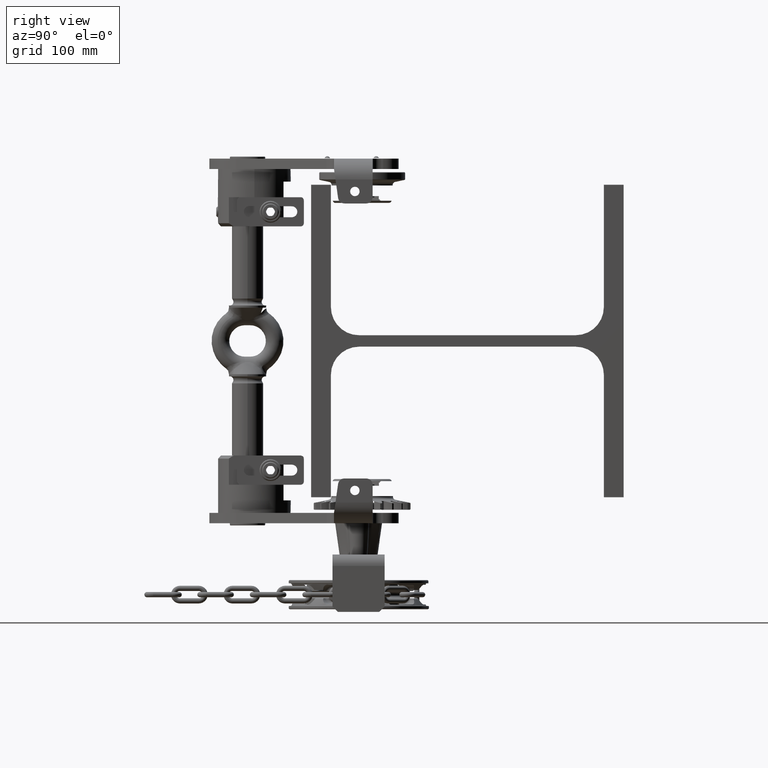
[diagram: clean part render]
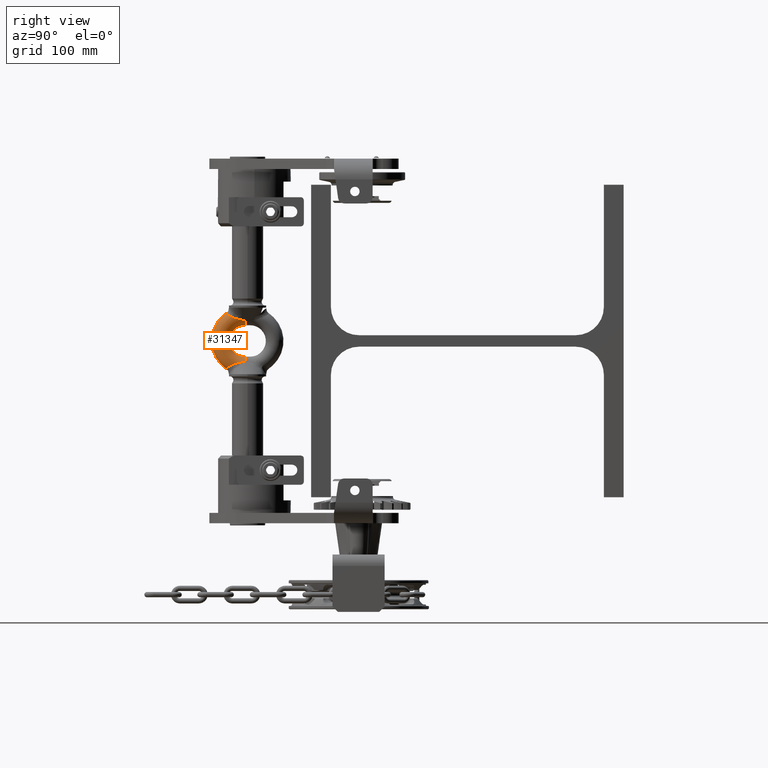
[diagram: same view with one face highlighted and labeled with its STEP entity id]
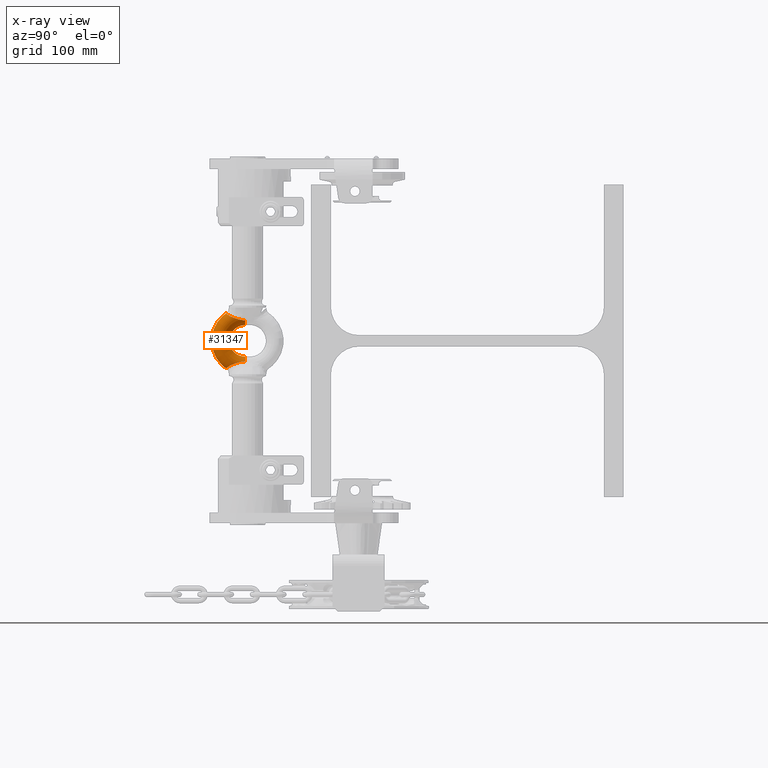
[diagram: x-ray of the same camera — body ghosted, the highlighted face saturated]
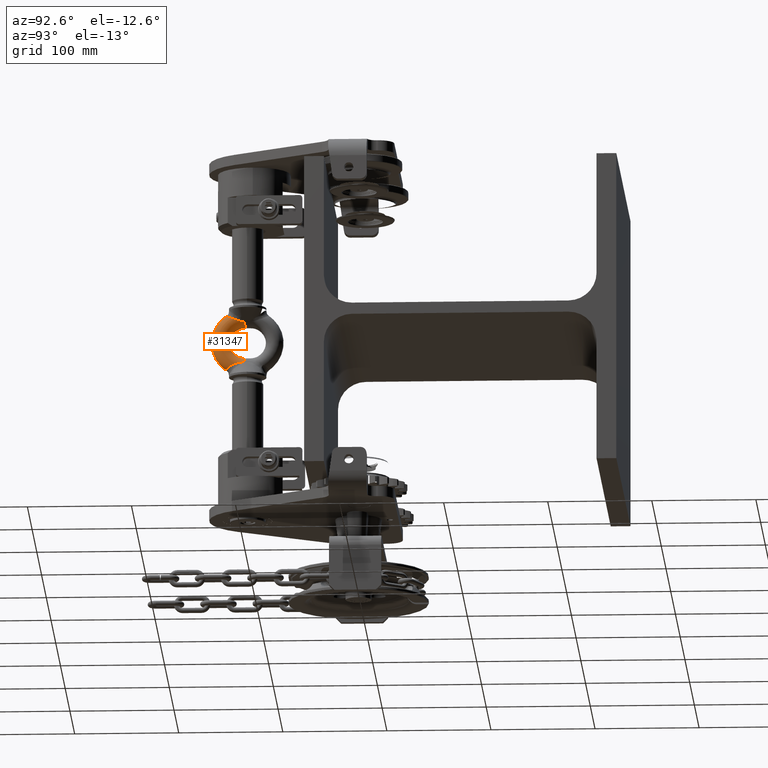
[diagram: same view with one face highlighted and labeled with its STEP entity id]
A machine part, right view. The second image highlights one B-rep face of the part: STEP entity #31347.
The next image is the same camera in x-ray: the body ghosted, the highlighted face saturated — about 0% of this face is hidden behind the body in this view.
A second angle (auxiliary view) of the same face is appended — the face is thin or edge-on in the first view.
In plain terms, the highlighted toroidal blend (fillet) surface has major radius 23.5 mm and minor (blend) radius 8.5 mm.
Its self-contained STEP definition (entity closure, byte-faithful):
#277 = EDGE_CURVE ( 'NONE', #48843, #9259, #40913, .T. ) ;
#392 = CARTESIAN_POINT ( 'NONE',  ( -8.012117313590044500, -217.8926884514708600, 20.18206153499020400 ) ) ;
#607 = CARTESIAN_POINT ( 'NONE',  ( -3.593475862119110100, -231.0586143345926500, -25.86095324539558100 ) ) ;
#688 = ORIENTED_EDGE ( 'NONE', *, *, #3770, .T. ) ;
#792 = CARTESIAN_POINT ( 'NONE',  ( -1.829604765780566300, -231.4785545748710500, -26.24635493749952900 ) ) ;
#902 = CARTESIAN_POINT ( 'NONE',  ( 7.183376436351991000, -228.1645947484738900, 23.92812268775933000 ) ) ;
#1229 = TOROIDAL_SURFACE ( 'NONE', #37396, 23.50000000000000000, 8.500000000000000000 ) ;
#1336 = CARTESIAN_POINT ( 'NONE',  ( 8.498110677027398200, -222.1291866266562400, -21.43922223185180100 ) ) ;
#1525 = CARTESIAN_POINT ( 'NONE',  ( 8.330479298748246100, -225.2414437945095400, -22.55338694072743200 ) ) ;
#2070 = EDGE_CURVE ( 'NONE', #53631, #4346, #40213, .T. ) ;
#2414 = CARTESIAN_POINT ( 'NONE',  ( -7.707665712135336900, -215.7187106817510800, -19.79814650362222400 ) ) ;
#3323 = CARTESIAN_POINT ( 'NONE',  ( -8.177037225213736000, -218.9575038254568300, -20.45351637153345000 ) ) ;
#3770 = EDGE_CURVE ( 'NONE', #34918, #30333, #41793, .T. ) ;
#4341 = EDGE_CURVE ( 'NONE', #4346, #15022, #14826, .T. ) ;
#4346 = VERTEX_POINT ( 'NONE', #23506 ) ;
#4607 = CARTESIAN_POINT ( 'NONE',  ( -8.176983259097278600, -218.9571527733319600, 20.45342395409418000 ) ) ;
#4747 = CARTESIAN_POINT ( 'NONE',  ( 7.398102048708245200, -227.7998351219848400, 23.72997517694874500 ) ) ;
#4819 = CARTESIAN_POINT ( 'NONE',  ( -2.278363378916902900, -231.3969771073864500, -26.16710540338973700 ) ) ;
#4918 = CARTESIAN_POINT ( 'NONE',  ( -7.760471377960655600, -227.0435407587240800, 23.34831969248508100 ) ) ;
#4984 = CARTESIAN_POINT ( 'NONE',  ( 0.4699801663488970000, -231.6124522104546500, -26.38022830499559000 ) ) ;
#5083 = FACE_OUTER_BOUND ( 'NONE', #51565, .T. ) ;
#5329 = CARTESIAN_POINT ( 'NONE',  ( -8.436953892678269900, -221.0724974940012000, 21.09512670447970700 ) ) ;
#5534 = CARTESIAN_POINT ( 'NONE',  ( 3.152771738823623200, -231.1634170928548400, -25.95720264742214300 ) ) ;
#5538 = CARTESIAN_POINT ( 'NONE',  ( 7.607898068798538000, -214.6138675099476000, -19.68357328288470900 ) ) ;
#5701 = CARTESIAN_POINT ( 'NONE',  ( 2.939087935029935900, -231.2268283909203900, -26.01317924822786400 ) ) ;
#5704 = CARTESIAN_POINT ( 'NONE',  ( 7.707850285551109500, -215.7204890694204700, -19.79835566781951100 ) ) ;
#8385 = CARTESIAN_POINT ( 'NONE',  ( -6.425923303009506400, -229.1537454965351800, 24.50925974817403100 ) ) ;
#8567 = CARTESIAN_POINT ( 'NONE',  ( 0.4571020592432961100, -231.6129502900379000, 26.38073822630805100 ) ) ;
#8743 = CARTESIAN_POINT ( 'NONE',  ( -1.845602125595855700, -231.4760137976381900, 26.24387967235901400 ) ) ;
#8912 = CARTESIAN_POINT ( 'NONE',  ( -7.395150458443200000, -227.8054969754486800, 23.73291602195433100 ) ) ;
#9001 = FACE_OUTER_BOUND ( 'NONE', #52318, .T. ) ;
#9176 = CARTESIAN_POINT ( 'NONE',  ( 1.845602125594609300, -231.4760137976383300, -26.24387967235919200 ) ) ;
#9259 = VERTEX_POINT ( 'NONE', #9573 ) ;
#9573 = CARTESIAN_POINT ( 'NONE',  ( 8.033546829605322500, -226.2359166279127600, 22.98436222492477700 ) ) ;
#9661 = CARTESIAN_POINT ( 'NONE',  ( 8.012103469725325100, -217.8925964510991100, 20.18203515796556100 ) ) ;
#9900 = CARTESIAN_POINT ( 'NONE',  ( 5.474604102800814300, -229.9976184564135900, -25.06376838451633300 ) ) ;
#9903 = CARTESIAN_POINT ( 'NONE',  ( 8.012117313590431800, -217.8926884514733300, -20.18206153499076900 ) ) ;
#10036 = CARTESIAN_POINT ( 'NONE',  ( 7.559127262799712800, -213.5000000000011400, 19.61289374665443900 ) ) ;
#10072 = CARTESIAN_POINT ( 'NONE',  ( 6.425923303006026500, -229.1537454965388500, -24.50925974817642200 ) ) ;
#10428 = CARTESIAN_POINT ( 'NONE',  ( 7.910892914977518200, -226.6471068375319900, -23.16216176787063600 ) ) ;
#10912 = DIRECTION ( 'NONE',  ( 9.340314967697839100E-018, -1.000000000000000000, -1.409773439478746500E-014 ) ) ;
#11284 = CARTESIAN_POINT ( 'NONE',  ( -8.033546829603018600, -226.2359166279204900, -22.98436222492813400 ) ) ;
#11325 = CARTESIAN_POINT ( 'NONE',  ( 8.437016275275981400, -221.0732321825282400, 21.09536054762053000 ) ) ;
#11498 = CARTESIAN_POINT ( 'NONE',  ( -7.926675991449930500, -217.3560716809734300, -20.06417413808372500 ) ) ;
#11863 = CARTESIAN_POINT ( 'NONE',  ( -8.461707026444779300, -224.2171476931511900, -22.16352645544191800 ) ) ;
#12026 = CARTESIAN_POINT ( 'NONE',  ( -8.508370039768658800, -222.6550911638806800, -21.61594198959735600 ) ) ;
#12091 = CARTESIAN_POINT ( 'NONE',  ( 2.335078742462192400E-017, -213.5000000000011400, -3.430864362104419700E-015 ) ) ;
#12206 = CARTESIAN_POINT ( 'NONE',  ( -8.498138546864998600, -222.1300118594207900, -21.43949636248295600 ) ) ;
#12801 = CARTESIAN_POINT ( 'NONE',  ( 7.774365471924894200, -216.2695698684131000, 19.87248625893916200 ) ) ;
#12945 = CARTESIAN_POINT ( 'NONE',  ( 6.695757780853430300, -228.8422757546069300, 24.31850306569397800 ) ) ;
#13062 = CARTESIAN_POINT ( 'NONE',  ( 1.123973169648826800E-015, -213.5000000000011400, 23.49999999999999600 ) ) ;
#13197 = CARTESIAN_POINT ( 'NONE',  ( -7.183376436348591900, -228.1645947484791500, -23.92812268776232900 ) ) ;
#13270 = EDGE_CURVE ( 'NONE', #48082, #53631, #36133, .T. ) ;
#13368 = CARTESIAN_POINT ( 'NONE',  ( -0.9211083937004489500, -231.5863482906602300, -26.35306217488143000 ) ) ;
#13700 = CARTESIAN_POINT ( 'NONE',  ( 7.926675991449559300, -217.3560716809711300, 20.06417413808319900 ) ) ;
#13731 = AXIS2_PLACEMENT_3D ( 'NONE', #13062, #37584, #45978 ) ;
#14104 = CARTESIAN_POINT ( 'NONE',  ( 7.926745514533425100, -217.3564898702217400, -20.06427242854239900 ) ) ;
#14295 = CARTESIAN_POINT ( 'NONE',  ( 7.760471377957923500, -227.0435407587307000, -23.34831969248830300 ) ) ;
#14826 = B_SPLINE_CURVE_WITH_KNOTS ( 'NONE', 3,
 ( #53365, #19089, #27553, #2414, #31786, #11498, #53918, #3323, #33197, #53537, #15736, #12206, #12026, #11863, #53731, #49363 ),
 .UNSPECIFIED., .F., .F.,
 ( 4, 2, 2, 2, 2, 2, 2, 4 ),
 ( 0.0000000000000000000, 0.001673460226891922200, 0.003346920453783844500, 0.005020380680675766300, 0.006693840907567688900, 0.008367301134459612400, 0.01004076136135153300, 0.01338768181513538100 ),
 .UNSPECIFIED. ) ;
#15022 = VERTEX_POINT ( 'NONE', #11284 ) ;
#15736 = CARTESIAN_POINT ( 'NONE',  ( -8.437016275276397100, -221.0732321825330500, -21.09536054762211400 ) ) ;
#15785 = ORIENTED_EDGE ( 'NONE', *, *, #42144, .T. ) ;
#16752 = B_SPLINE_CURVE_WITH_KNOTS ( 'NONE', 3,
 ( #17787, #29786, #17418, #46984, #13197, #21684, #38245, #42420, #17255, #25920, #607, #4819, #792, #13368, #29947, #4984, #34370, #9176, #52298, #5701, #5534, #18918, #34917, #18731, #39715, #48281, #9900, #23171, #43330, #10072, #22414, #51734, #39340, #14295, #10428, #52102 ),
 .UNSPECIFIED., .F., .F.,
 ( 4, 2, 2, 2, 2, 2, 2, 2, 2, 2, 2, 2, 2, 2, 2, 2, 2, 4 ),
 ( 0.0000000000000000000, 0.001383546643986812700, 0.002767093287973625400, 0.004150639931960438700, 0.005534186575947250800, 0.008301279863920837600, 0.009684826507907621000, 0.01106837315189440300, 0.01245191979588118800, 0.01383546643986797000, 0.01452723976186137200, 0.01521901308385477400, 0.01660255972784161300, 0.01729433304983502700, 0.01798610637182844500, 0.01936965301581532900, 0.02075319965980221300, 0.02213674630378909700 ),
 .UNSPECIFIED. ) ;
#16811 = CARTESIAN_POINT ( 'NONE',  ( 8.461707026445401100, -224.2171476931444000, 22.16352645543940600 ) ) ;
#17003 = CARTESIAN_POINT ( 'NONE',  ( -0.9352857994376837500, -231.5852878624832300, 26.35197382623404400 ) ) ;
#17188 = CARTESIAN_POINT ( 'NONE',  ( 7.760821422453897600, -227.0423118168864100, 23.34778317703644400 ) ) ;
#17231 = CARTESIAN_POINT ( 'NONE',  ( -7.707850285550978100, -215.7204890694193000, 19.79835566781935400 ) ) ;
#17255 = CARTESIAN_POINT ( 'NONE',  ( -5.480409519094659600, -230.0056671382585600, -25.06712180852130000 ) ) ;
#17418 = CARTESIAN_POINT ( 'NONE',  ( -7.760821422451083900, -227.0423118168931800, -23.34778317703975900 ) ) ;
#17536 = CARTESIAN_POINT ( 'NONE',  ( -3.152771738825795600, -231.1634170928540800, 25.95720264742156400 ) ) ;
#17787 = CARTESIAN_POINT ( 'NONE',  ( -8.033546829603018600, -226.2359166279204900, -22.98436222492813400 ) ) ;
#17945 = CARTESIAN_POINT ( 'NONE',  ( -8.461781882911847000, -224.2164204265933700, 22.16325586094181000 ) ) ;
#18169 = CARTESIAN_POINT ( 'NONE',  ( 8.033546829601752000, -226.2359166279247200, -22.98436222492995300 ) ) ;
#18731 = CARTESIAN_POINT ( 'NONE',  ( 4.389082001979673500, -230.6775301970003200, -25.55731191684988000 ) ) ;
#18918 = CARTESIAN_POINT ( 'NONE',  ( 3.574386387254490300, -231.0201841004270000, -25.83488229174130200 ) ) ;
#19089 = CARTESIAN_POINT ( 'NONE',  ( -7.574453641674507400, -214.0577752714033900, -19.64269844990710800 ) ) ;
#20118 = ORIENTED_EDGE ( 'NONE', *, *, #20265, .F. ) ;
#20212 = CARTESIAN_POINT ( 'NONE',  ( 7.559127262799712800, -213.5000000000011400, 19.61289374665443900 ) ) ;
#20265 = EDGE_CURVE ( 'NONE', #48843, #30333, #50906, .T. ) ;
#21135 = CARTESIAN_POINT ( 'NONE',  ( 7.607863819434955500, -214.6132226181503900, 19.68353115087416700 ) ) ;
#21437 = CARTESIAN_POINT ( 'NONE',  ( 0.9211083937013219100, -231.5863482906602300, 26.35306217488135200 ) ) ;
#21470 = CARTESIAN_POINT ( 'NONE',  ( -8.498110677027218800, -222.1291866266509200, 21.43922223185004600 ) ) ;
#21617 = CARTESIAN_POINT ( 'NONE',  ( -3.783211691023427000, -230.9399060595463900, 25.76818904130486500 ) ) ;
#21684 = CARTESIAN_POINT ( 'NONE',  ( -6.695757780849822500, -228.8422757546112800, -24.31850306569667100 ) ) ;
#22199 = CARTESIAN_POINT ( 'NONE',  ( -8.385842717910357200, -220.5426974395362000, 20.92708601020787600 ) ) ;
#22231 = CARTESIAN_POINT ( 'NONE',  ( 8.176983259097761800, -218.9571527733351700, -20.45342395409505400 ) ) ;
#22414 = CARTESIAN_POINT ( 'NONE',  ( 6.698279655723747600, -228.8389357884966800, -24.31654947768435100 ) ) ;
#22563 = CARTESIAN_POINT ( 'NONE',  ( -7.559127262799717300, -213.5000000000011400, 19.61289374665443600 ) ) ;
#23171 = CARTESIAN_POINT ( 'NONE',  ( 5.806954384463249000, -229.7332536987617000, -24.88451005954024000 ) ) ;
#23506 = CARTESIAN_POINT ( 'NONE',  ( -7.559127262799711000, -213.5000000000008500, -19.61289374665445700 ) ) ;
#24603 = CARTESIAN_POINT ( 'NONE',  ( 7.559127262799706600, -213.5000000000008500, -19.61289374665443600 ) ) ;
#24666 = DIRECTION ( 'NONE',  ( 1.000000000000000000, 9.340314967698506300E-018, -4.683499498826397000E-017 ) ) ;
#24785 = CARTESIAN_POINT ( 'NONE',  ( 8.498138546864808500, -222.1300118594153300, 21.43949636248108700 ) ) ;
#25353 = CARTESIAN_POINT ( 'NONE',  ( 7.707665712135187700, -215.7187106817497700, 19.79814650362203200 ) ) ;
#25496 = CARTESIAN_POINT ( 'NONE',  ( -6.698279655727170700, -228.8389357884924800, 24.31654947768182100 ) ) ;
#25540 = CARTESIAN_POINT ( 'NONE',  ( -8.255971919958394500, -219.4856971680085300, 20.60612517120819800 ) ) ;
#25680 = CARTESIAN_POINT ( 'NONE',  ( -5.967984477963142400, -229.5926266201328800, 24.79155080476233400 ) ) ;
#25722 = CARTESIAN_POINT ( 'NONE',  ( -7.574460406512468300, -214.0580214651949400, 19.64271160526422800 ) ) ;
#25858 = CARTESIAN_POINT ( 'NONE',  ( 6.422970416383629200, -229.1566862657668100, 24.51113094386779400 ) ) ;
#25898 = CARTESIAN_POINT ( 'NONE',  ( -8.330479298749489600, -225.2414437945022300, 22.55338694072455400 ) ) ;
#25920 = CARTESIAN_POINT ( 'NONE',  ( -4.394644268800856700, -230.7181241440165400, -25.57724404439000300 ) ) ;
#26036 = CARTESIAN_POINT ( 'NONE',  ( 1.829604765782102800, -231.4785545748708300, 26.24635493749927300 ) ) ;
#26076 = CARTESIAN_POINT ( 'NONE',  ( -8.508368360528306700, -222.6542570671407200, 21.61565742733627700 ) ) ;
#27553 = CARTESIAN_POINT ( 'NONE',  ( -7.607863819435000800, -214.6132226181508700, -19.68353115087424100 ) ) ;
#27925 = CARTESIAN_POINT ( 'NONE',  ( 8.256039911982378900, -219.4861712147273400, 20.60626332106449300 ) ) ;
#29545 = CARTESIAN_POINT ( 'NONE',  ( 5.816401600259342600, -229.7377900689749600, 24.88494122273117200 ) ) ;
#29726 = CARTESIAN_POINT ( 'NONE',  ( -4.389082001982564500, -230.6775301969989300, 25.55731191684878900 ) ) ;
#29762 = CARTESIAN_POINT ( 'NONE',  ( -7.926745514533092100, -217.3564898702195800, 20.06427242854194000 ) ) ;
#29786 = CARTESIAN_POINT ( 'NONE',  ( -7.910900452840527600, -226.6470815672796000, -23.16215084095834300 ) ) ;
#29947 = CARTESIAN_POINT ( 'NONE',  ( -0.4571020592427776400, -231.6129502900378700, -26.38073822630807200 ) ) ;
#30066 = CARTESIAN_POINT ( 'NONE',  ( -4.768551036335461300, -230.4732831993357500, 25.40183353058509000 ) ) ;
#30252 = CARTESIAN_POINT ( 'NONE',  ( -2.289661432178440300, -231.3943684605416100, 26.16469576149837200 ) ) ;
#30333 = VERTEX_POINT ( 'NONE', #33542 ) ;
#30684 = CARTESIAN_POINT ( 'NONE',  ( 7.774547543605799600, -216.2709462932545500, -19.87270462672620800 ) ) ;
#30870 = CARTESIAN_POINT ( 'NONE',  ( 8.461781882911264300, -224.2164204265998800, -22.16325586094416200 ) ) ;
#31024 = EDGE_CURVE ( 'NONE', #9259, #34918, #32726, .T. ) ;
#31347 = ADVANCED_FACE ( 'NONE', ( #9001, #5083 ), #1229, .T. ) ;
#31786 = CARTESIAN_POINT ( 'NONE',  ( -7.774365471925120700, -216.2695698684147800, -19.87248625893945000 ) ) ;
#32143 = CARTESIAN_POINT ( 'NONE',  ( 8.385914111974976500, -220.5433579218877800, 20.92729236923187500 ) ) ;
#32271 = CARTESIAN_POINT ( 'NONE',  ( -1.077271594799582900E-015, -213.5000000000008000, -23.50000000000000400 ) ) ;
#32448 = DIRECTION ( 'NONE',  ( 1.000000000000000000, 0.0000000000000000000, 0.0000000000000000000 ) ) ;
#32726 = B_SPLINE_CURVE_WITH_KNOTS ( 'NONE', 3,
 ( #42360, #46575, #17188, #4747, #902, #12945, #25858, #29545, #50941, #37814, #46753, #42198, #26036, #21437, #8567, #33932, #17003, #8743, #30252, #50424, #17536, #33575, #21617, #29726, #30066, #51119, #50772, #50613, #25680, #8385, #25496, #34122, #8912, #4918, #42728, #38177 ),
 .UNSPECIFIED., .F., .F.,
 ( 4, 2, 2, 2, 2, 2, 2, 2, 2, 2, 2, 2, 2, 2, 2, 2, 2, 4 ),
 ( 0.0000000000000000000, 0.001383546643987845100, 0.002767093287975690200, 0.004150639931963535200, 0.005534186575951380300, 0.008301279863927073900, 0.009684826507914910300, 0.01106837315190274700, 0.01245191979589058100, 0.01383546643987841800, 0.01452723976187233500, 0.01521901308386625200, 0.01660255972785411700, 0.01729433304984805100, 0.01798610637184198300, 0.01936965301582989400, 0.02075319965981780500, 0.02213674630380571900 ),
 .UNSPECIFIED. ) ;
#33197 = CARTESIAN_POINT ( 'NONE',  ( -8.256039911982922400, -219.4861712147311400, -20.60626332106566100 ) ) ;
#33542 = CARTESIAN_POINT ( 'NONE',  ( -7.559127262799717300, -213.5000000000011400, 19.61289374665443600 ) ) ;
#33575 = CARTESIAN_POINT ( 'NONE',  ( -3.574386387256947000, -231.0201841004260600, 25.83488229174054100 ) ) ;
#33932 = CARTESIAN_POINT ( 'NONE',  ( -0.4699801663491024500, -231.6124522104545600, 26.38022830499560800 ) ) ;
#33978 = CARTESIAN_POINT ( 'NONE',  ( -7.774547543605613100, -216.2709462932530800, 19.87270462672598400 ) ) ;
#34122 = CARTESIAN_POINT ( 'NONE',  ( -7.182722925595189900, -228.1653374688099500, 23.92858023809002800 ) ) ;
#34370 = CARTESIAN_POINT ( 'NONE',  ( 0.9352857994371165400, -231.5852878624834000, -26.35197382623407600 ) ) ;
#34552 = CARTESIAN_POINT ( 'NONE',  ( 8.508368360528338700, -222.6542570671464000, -21.61565742733819600 ) ) ;
#34917 = CARTESIAN_POINT ( 'NONE',  ( 3.783211691020842000, -230.9399060595474700, -25.76818904130570300 ) ) ;
#34918 = VERTEX_POINT ( 'NONE', #53761 ) ;
#35018 = CARTESIAN_POINT ( 'NONE',  ( 8.033546829605322500, -226.2359166279127600, 22.98436222492477700 ) ) ;
#36133 = B_SPLINE_CURVE_WITH_KNOTS ( 'NONE', 3,
 ( #18169, #1525, #30870, #34552, #1336, #38611, #47359, #46988, #22231, #9903, #14104, #30684, #5704, #5538, #51924, #43157 ),
 .UNSPECIFIED., .F., .F.,
 ( 4, 2, 2, 2, 2, 2, 2, 4 ),
 ( 0.0000000000000000000, 0.003371336602415204000, 0.005057004903622807100, 0.006742673204830410700, 0.008428341506038014200, 0.01011400980724561800, 0.01179967810845322100, 0.01348534640966082500 ),
 .UNSPECIFIED. ) ;
#37311 = CARTESIAN_POINT ( 'NONE',  ( 7.574453641674504700, -214.0577752714033000, 19.64269844990707600 ) ) ;
#37396 = AXIS2_PLACEMENT_3D ( 'NONE', #12091, #24666, #54150 ) ;
#37575 = ORIENTED_EDGE ( 'NONE', *, *, #277, .T. ) ;
#37584 = DIRECTION ( 'NONE',  ( -9.340314967698492400E-018, 1.000000000000000000, 9.340314967698498500E-018 ) ) ;
#37814 = CARTESIAN_POINT ( 'NONE',  ( 4.394644268804078100, -230.7181241440150900, 25.57724404438880200 ) ) ;
#38026 = ORIENTED_EDGE ( 'NONE', *, *, #4341, .T. ) ;
#38177 = CARTESIAN_POINT ( 'NONE',  ( -8.033546829604000900, -226.2359166279171600, 22.98436222492669500 ) ) ;
#38245 = CARTESIAN_POINT ( 'NONE',  ( -6.422970416379962800, -229.1566862657705900, -24.51113094387030600 ) ) ;
#38611 = CARTESIAN_POINT ( 'NONE',  ( 8.436953892678666000, -221.0724974940058000, -21.09512670448115700 ) ) ;
#39119 = CARTESIAN_POINT ( 'NONE',  ( 8.177037225213215500, -218.9575038254535000, 20.45351637153248000 ) ) ;
#39124 = AXIS2_PLACEMENT_3D ( 'NONE', #32271, #10912, #32448 ) ;
#39340 = CARTESIAN_POINT ( 'NONE',  ( 7.395150458440050500, -227.8054969754543000, -23.73291602195736900 ) ) ;
#39715 = CARTESIAN_POINT ( 'NONE',  ( 4.768551036332390000, -230.4732831993374000, -25.40183353058639400 ) ) ;
#40213 = CIRCLE ( 'NONE', #39124, 8.500000000000000000 ) ;
#40913 = B_SPLINE_CURVE_WITH_KNOTS ( 'NONE', 3,
 ( #20212, #37311, #21135, #25353, #12801, #13700, #9661, #39119, #27925, #32143, #11325, #24785, #45494, #16811, #42015, #35018 ),
 .UNSPECIFIED., .F., .F.,
 ( 4, 2, 2, 2, 2, 2, 2, 4 ),
 ( 0.0000000000000000000, 0.001673460226890762300, 0.003346920453781524700, 0.005020380680672287300, 0.006693840907563049400, 0.008367301134453813300, 0.01004076136134457500, 0.01338768181512617700 ),
 .UNSPECIFIED. ) ;
#41793 = B_SPLINE_CURVE_WITH_KNOTS ( 'NONE', 3,
 ( #42585, #25898, #17945, #26076, #21470, #5329, #22199, #25540, #4607, #392, #29762, #33978, #17231, #50812, #25722, #22563 ),
 .UNSPECIFIED., .F., .F.,
 ( 4, 2, 2, 2, 2, 2, 2, 4 ),
 ( 0.0000000000000000000, 0.003371336602413086800, 0.005057004903619590100, 0.006742673204826093800, 0.008428341506032596700, 0.01011400980723909900, 0.01179967810844560400, 0.01348534640965210400 ),
 .UNSPECIFIED. ) ;
#42015 = CARTESIAN_POINT ( 'NONE',  ( 8.330585538750328900, -225.2410879802813500, 22.55323274130386600 ) ) ;
#42144 = EDGE_CURVE ( 'NONE', #15022, #48082, #16752, .T. ) ;
#42198 = CARTESIAN_POINT ( 'NONE',  ( 2.278363378918762700, -231.3969771073862800, 26.16710540338933600 ) ) ;
#42360 = CARTESIAN_POINT ( 'NONE',  ( 8.033546829605322500, -226.2359166279127600, 22.98436222492477700 ) ) ;
#42420 = CARTESIAN_POINT ( 'NONE',  ( -5.816401600255676200, -229.7377900689779200, -24.88494122273327500 ) ) ;
#42585 = CARTESIAN_POINT ( 'NONE',  ( -8.033546829604000900, -226.2359166279171600, 22.98436222492669500 ) ) ;
#42728 = CARTESIAN_POINT ( 'NONE',  ( -7.910892914980018500, -226.6471068375248300, 23.16216176786739200 ) ) ;
#43157 = CARTESIAN_POINT ( 'NONE',  ( 7.559127262799706600, -213.5000000000008500, -19.61289374665443600 ) ) ;
#43330 = CARTESIAN_POINT ( 'NONE',  ( 5.967984477959651800, -229.5926266201360000, -24.79155080476443000 ) ) ;
#45494 = CARTESIAN_POINT ( 'NONE',  ( 8.508370039768628600, -222.6550911638748900, 21.61594198959526700 ) ) ;
#45978 = DIRECTION ( 'NONE',  ( 1.000000000000000000, 0.0000000000000000000, 0.0000000000000000000 ) ) ;
#46575 = CARTESIAN_POINT ( 'NONE',  ( 7.910900452843096200, -226.6470815672723500, 23.16215084095499300 ) ) ;
#46581 = ORIENTED_EDGE ( 'NONE', *, *, #13270, .T. ) ;
#46753 = CARTESIAN_POINT ( 'NONE',  ( 3.593475862121883900, -231.0586143345918200, 25.86095324539474700 ) ) ;
#46984 = CARTESIAN_POINT ( 'NONE',  ( -7.398102048705013100, -227.7998351219906700, -23.72997517695188200 ) ) ;
#46988 = CARTESIAN_POINT ( 'NONE',  ( 8.255971919958891900, -219.4856971680120000, -20.60612517120924600 ) ) ;
#47359 = CARTESIAN_POINT ( 'NONE',  ( 8.385842717910810200, -220.5426974395404300, -20.92708601020919400 ) ) ;
#48082 = VERTEX_POINT ( 'NONE', #49292 ) ;
#48281 = CARTESIAN_POINT ( 'NONE',  ( 5.302512711438356300, -230.1221383418246400, -25.15056868895873500 ) ) ;
#48843 = VERTEX_POINT ( 'NONE', #10036 ) ;
#49012 = ORIENTED_EDGE ( 'NONE', *, *, #2070, .T. ) ;
#49292 = CARTESIAN_POINT ( 'NONE',  ( 8.033546829601752000, -226.2359166279247200, -22.98436222492995300 ) ) ;
#49363 = CARTESIAN_POINT ( 'NONE',  ( -8.033546829603018600, -226.2359166279204900, -22.98436222492813400 ) ) ;
#50424 = CARTESIAN_POINT ( 'NONE',  ( -2.939087935031957400, -231.2268283909197400, 26.01317924822737700 ) ) ;
#50613 = CARTESIAN_POINT ( 'NONE',  ( -5.806954384466679100, -229.7332536987588300, 24.88451005953833600 ) ) ;
#50772 = CARTESIAN_POINT ( 'NONE',  ( -5.474604102804145000, -229.9976184564110600, 25.06376838451463800 ) ) ;
#50812 = CARTESIAN_POINT ( 'NONE',  ( -7.607898068798508700, -214.6138675099470800, 19.68357328288465900 ) ) ;
#50906 = CIRCLE ( 'NONE', #13731, 8.500000000000000000 ) ;
#50941 = CARTESIAN_POINT ( 'NONE',  ( 5.480409519098250500, -230.0056671382560300, 25.06712180851946000 ) ) ;
#51119 = CARTESIAN_POINT ( 'NONE',  ( -5.302512711441636400, -230.1221383418223400, 25.15056868895709400 ) ) ;
#51565 = EDGE_LOOP ( 'NONE', ( #20118, #37575, #54314, #688 ) ) ;
#51734 = CARTESIAN_POINT ( 'NONE',  ( 7.182722925591942700, -228.1653374688150400, -23.92858023809287700 ) ) ;
#51924 = CARTESIAN_POINT ( 'NONE',  ( 7.574460406512457700, -214.0580214651951100, -19.64271160526422800 ) ) ;
#52102 = CARTESIAN_POINT ( 'NONE',  ( 8.033546829601752000, -226.2359166279247200, -22.98436222492995300 ) ) ;
#52298 = CARTESIAN_POINT ( 'NONE',  ( 2.289661432176874900, -231.3943684605419500, -26.16469576149864900 ) ) ;
#52318 = EDGE_LOOP ( 'NONE', ( #49012, #38026, #15785, #46581 ) ) ;
#53365 = CARTESIAN_POINT ( 'NONE',  ( -7.559127262799711000, -213.5000000000008500, -19.61289374665445700 ) ) ;
#53537 = CARTESIAN_POINT ( 'NONE',  ( -8.385914111975461400, -220.5433579218922100, -20.92729236923332100 ) ) ;
#53631 = VERTEX_POINT ( 'NONE', #24603 ) ;
#53731 = CARTESIAN_POINT ( 'NONE',  ( -8.330585538749083700, -225.2410879802886000, -22.55323274130670800 ) ) ;
#53761 = CARTESIAN_POINT ( 'NONE',  ( -8.033546829604000900, -226.2359166279171600, 22.98436222492669500 ) ) ;
#53918 = CARTESIAN_POINT ( 'NONE',  ( -8.012103469725753200, -217.8925964511017200, -20.18203515796620500 ) ) ;
#54150 = DIRECTION ( 'NONE',  ( -4.683499498826397000E-017, 0.0000000000000000000, -1.000000000000000000 ) ) ;
#54314 = ORIENTED_EDGE ( 'NONE', *, *, #31024, .T. ) ;